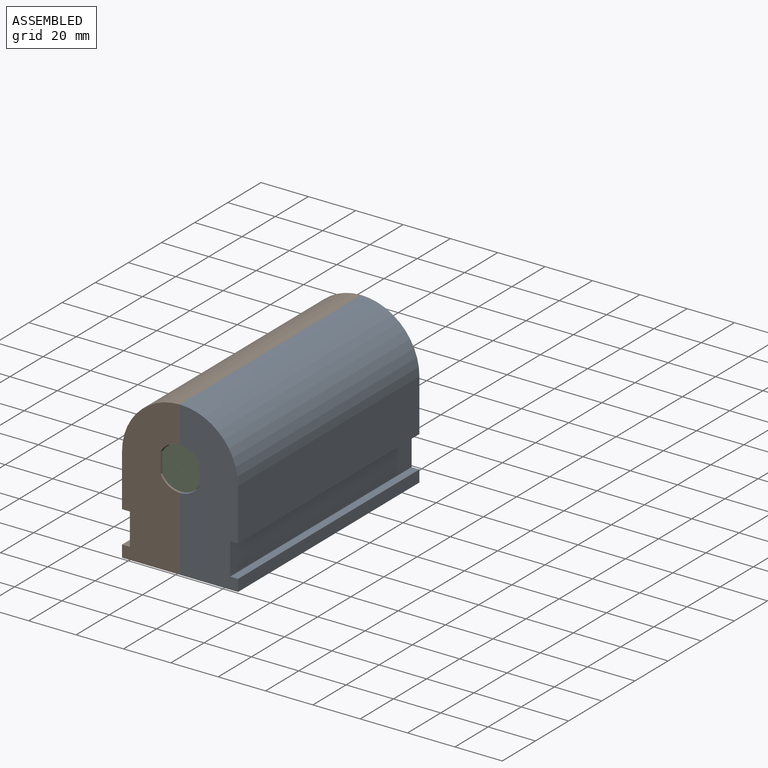
[diagram: assembled view]
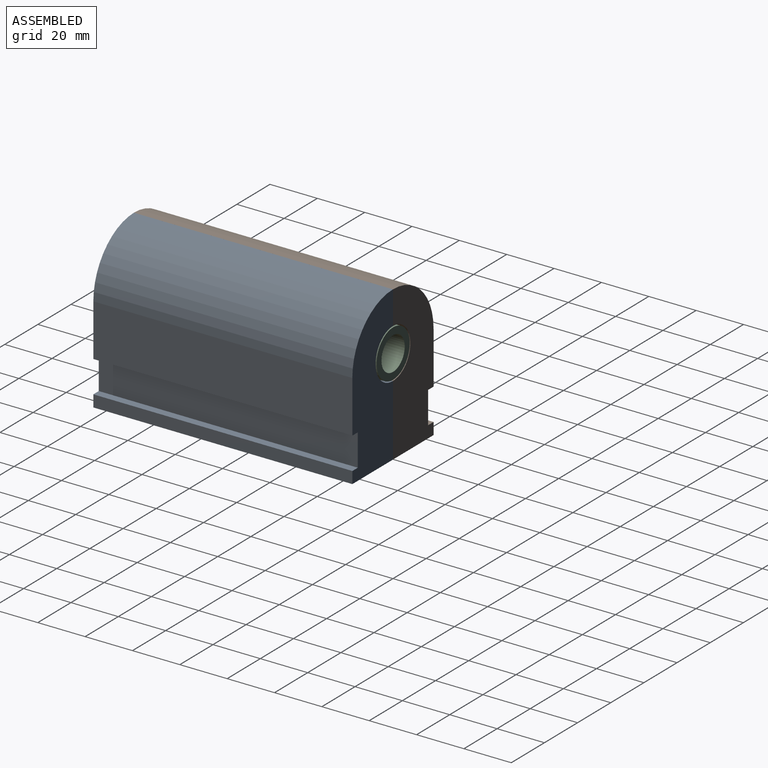
[diagram: assembled view, second angle]
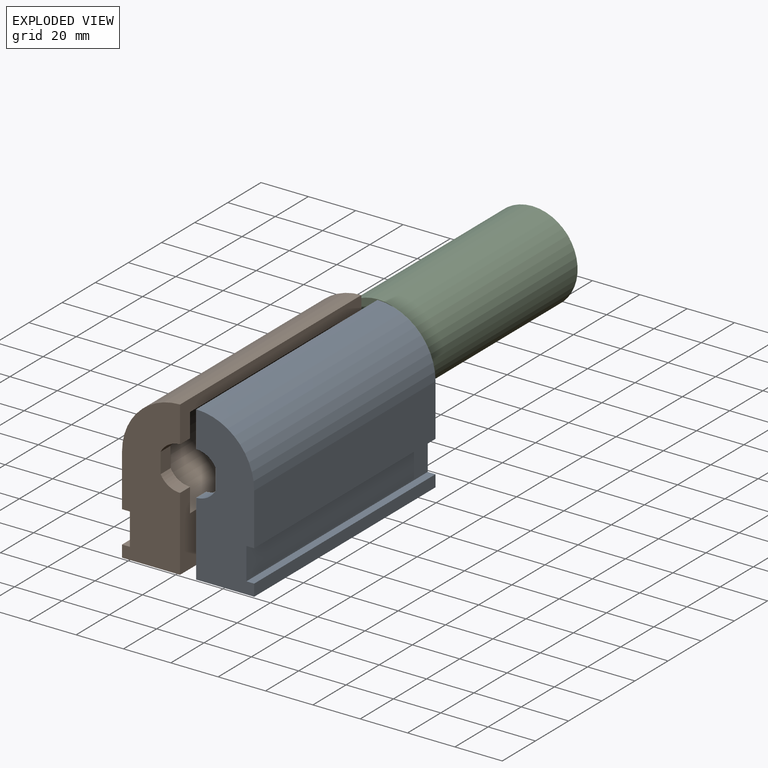
[diagram: exploded view]
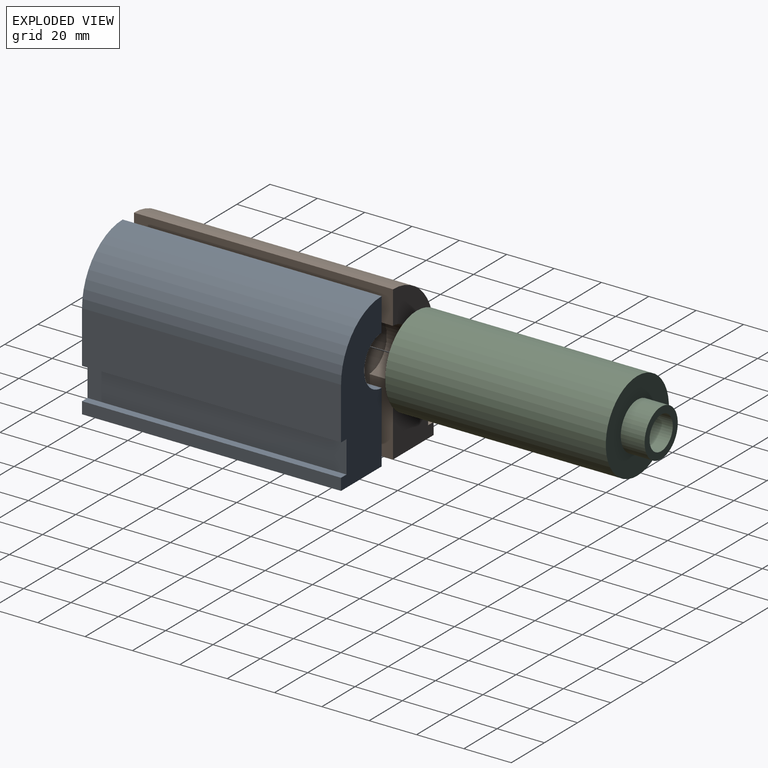
[diagram: exploded view, second angle]
ASSEMBLY  parts=3 mates=4
PART A: 18 faces, bbox 24.5x109.4x65 mm
  f0: cylinder r=24.5mm len=109.4mm, axis (0,1,0), area 4210.2mm2, adj f6,f9,f11,f16
  f1: plane 109.4x24.5mm, normal (0,0,-1), area 2680.3mm2, adj f6,f9,f10,f17
  f2: cylinder r=19.3mm len=93.4mm, axis (0,1,0), area 5663.1mm2, adj f3,f7,f16,f17
  f3: plane 38.6x19.3mm, normal (0,1,0), area 456.8mm2, adj f2,f4,f5,f12,f16,f17
  f4: cylinder r=9.25mm len=8.2mm, axis (0,1,0), area 60.5mm2, adj f3,f6,f12,f17
  f5: cylinder r=9.25mm len=8.2mm, axis (0,1,0), area 60.5mm2, adj f3,f6,f12,f16
  f6: plane 65x24.5mm, normal (0,-1,0), area 1290.8mm2, adj f0,f1,f4,f5,f10,f11,f12,f13
  f7: plane 38.6x19.3mm, normal (0,-1,0), area 411.9mm2, adj f2,f8,f16,f17
  f8: cylinder r=10.5mm len=21mm, axis (0,-1,0), area 329.9mm2, adj f7,f9,f16,f17
  f9: plane 65x24.5mm, normal (0,1,0), area 1246mm2, adj f0,f1,f8,f10,f11,f13,f14,f15
  f10: plane 109.4x5mm, normal (1,0,0), area 547mm2, adj f1,f6,f9,f13
  f11: plane 109.4x22mm, normal (1,0,0), area 2406.8mm2, adj f0,f6,f9,f15
  f12: plane 8.56x6mm, normal (-1,0,0), area 51.4mm2, adj f3,f4,f5,f6
  f13: plane 109.4x3.3mm, normal (0,0,1), area 361mm2, adj f6,f9,f10,f14
  f14: plane 109.4x13.5mm, normal (1,0,0), area 1476.9mm2, adj f6,f9,f13,f15
  f15: plane 109.4x3.3mm, normal (0,0,-1), area 361mm2, adj f6,f9,f11,f14
  f16: plane 109.4x15.25mm, normal (-1,0,0), area 717.2mm2, adj f0,f2,f3,f5,f6,f7,f8,f9
  f17: plane 109.4x31.25mm, normal (-1,0,0), area 2467.6mm2, adj f1,f2,f3,f4,f6,f7,f8,f9
PART B: 18 faces, bbox 24.5x109.4x65 mm
  f0: plane 109.4x5mm, normal (-1,0,0), area 547mm2, adj f4,f11,f14,f15
  f1: plane 109.4x15.25mm, normal (1,0,0), area 717.2mm2, adj f2,f6,f7,f10,f11,f12,f13,f14
  f2: cylinder r=24.5mm len=109.4mm, axis (0,1,0), area 4210.2mm2, adj f1,f3,f11,f14
  f3: plane 109.4x22mm, normal (-1,0,0), area 2406.8mm2, adj f2,f11,f14,f17
  f4: plane 109.4x24.5mm, normal (0,0,-1), area 2680.3mm2, adj f0,f5,f11,f14
  f5: plane 109.4x31.25mm, normal (1,0,0), area 2467.6mm2, adj f4,f6,f7,f8,f11,f12,f13,f14
  f6: cylinder r=19.3mm len=93.4mm, axis (0,1,0), area 5663.1mm2, adj f1,f5,f7,f12
  f7: plane 38.6x19.3mm, normal (0,1,0), area 456.8mm2, adj f1,f5,f6,f8,f9,f10
  f8: cylinder r=9.25mm len=8.2mm, axis (0,1,0), area 60.5mm2, adj f5,f7,f9,f11
  f9: plane 8.56x6mm, normal (1,0,0), area 51.4mm2, adj f7,f8,f10,f11
  f10: cylinder r=9.25mm len=8.2mm, axis (0,1,0), area 60.5mm2, adj f1,f7,f9,f11
  f11: plane 65x24.5mm, normal (0,-1,0), area 1290.8mm2, adj f0,f1,f2,f3,f4,f5,f8,f9
  f12: plane 38.6x19.3mm, normal (0,-1,0), area 411.9mm2, adj f1,f5,f6,f13
  f13: cylinder r=10.5mm len=21mm, axis (0,-1,0), area 329.9mm2, adj f1,f5,f12,f14
  f14: plane 65x24.5mm, normal (0,1,0), area 1246mm2, adj f0,f1,f2,f3,f4,f5,f13,f15
  f15: plane 109.4x3.3mm, normal (0,0,1), area 361mm2, adj f0,f11,f14,f16
  f16: plane 109.4x13.5mm, normal (-1,0,0), area 1476.9mm2, adj f11,f14,f15,f17
  f17: plane 109.4x3.3mm, normal (0,0,-1), area 361mm2, adj f3,f11,f14,f16
PART C: 12 faces, bbox 38.1x108.9x38.1 mm
  f0: cylinder r=19.04mm len=93.18mm, axis (0,1,0), area 11150.2mm2, adj f1,f2
  f1: plane 38.09x38.09mm, normal (0,-1,0), area 897.2mm2, adj f0,f3,f4,f5,f6
  f2: plane 38.09x38.09mm, normal (0,1,0), area 824.7mm2, adj f0,f8
  f3: cylinder r=9mm len=15.88mm, axis (0,1,0), area 108.9mm2, adj f1,f4,f6,f7
  f4: plane 8.48x5.6mm, normal (-1,0,0), area 47.5mm2, adj f1,f3,f5,f7
  f5: cylinder r=9mm len=15.88mm, axis (0,1,0), area 108.9mm2, adj f1,f4,f6,f7
  f6: plane 8.48x5.6mm, normal (1,0,0), area 47.5mm2, adj f1,f3,f5,f7
  f7: plane 18x15.88mm, normal (0,-1,0), area 242.3mm2, adj f3,f4,f5,f6
  f8: cylinder r=10.01mm len=20.02mm, axis (0,-1,0), area 633.3mm2, adj f2,f9
  f9: plane 20.02x20.02mm, normal (0,1,0), area 160.8mm2, adj f8,f10
  f10: cylinder r=7mm len=88.3mm, axis (0,1,0), area 3883.6mm2, adj f9,f11
  f11: plane 14x14mm, normal (0,1,0), area 153.9mm2, adj f10
PLACE A t=(3.8,-10.04,12.13)mm
PLACE B t=(3.8,-10.04,12.13)mm fixed
PLACE C t=(3.8,-9.93,12.13)mm
MATE planar C.f0 <-> B.f12  axis (0,1,0) through (3.8,36.66,12.13)mm
MATE fastened B.f5 <-> A.f17  axis (1,0,0) through (3.8,-7.53,-16.86)mm
MATE cylindrical C.f0 <-> B.f6  axis (0,1,0) through (3.8,-9.93,12.13)mm
MATE parallel B.f5 <-> C.f6  axis (1,0,0) through (3.8,-7.53,-16.86)mm
